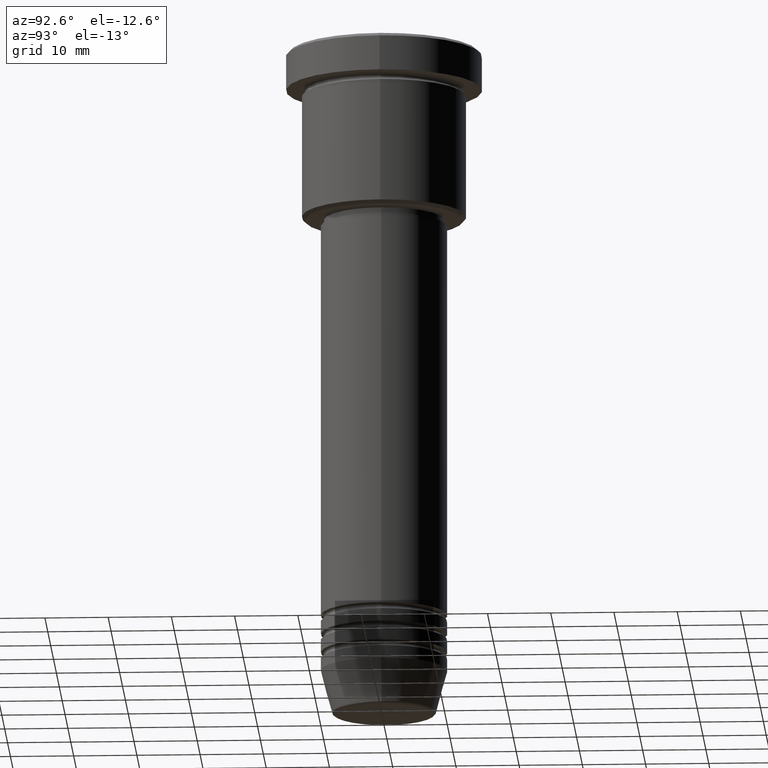
[diagram: clean part render]
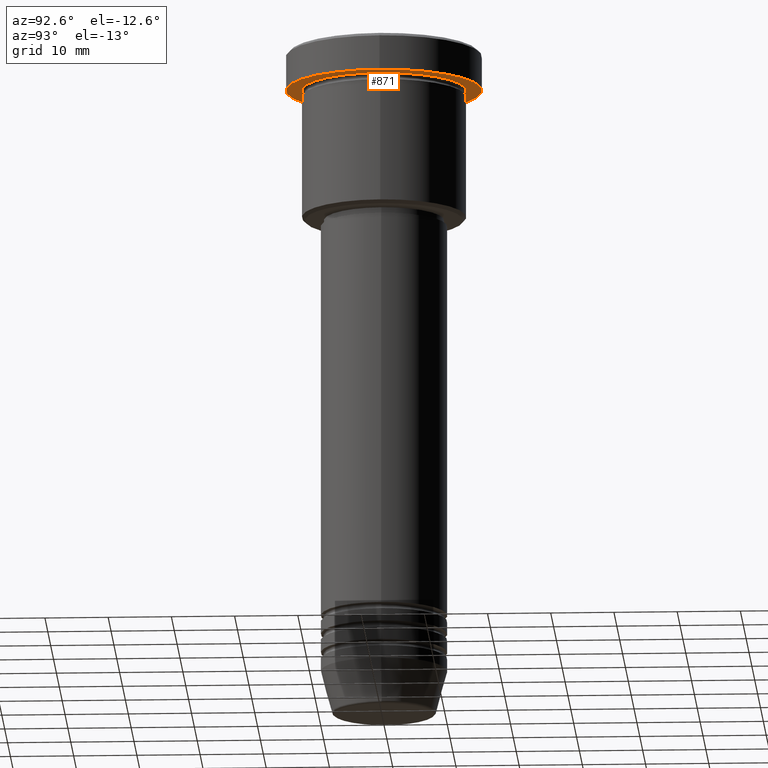
[diagram: same view with one face highlighted and labeled with its STEP entity id]
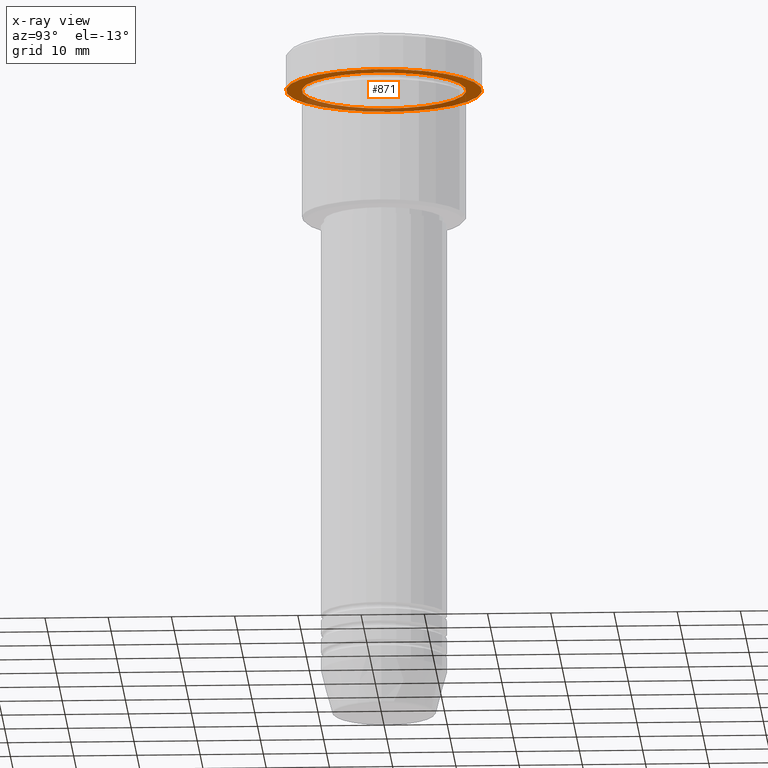
[diagram: x-ray of the same camera — body ghosted, the highlighted face saturated]
A machine part, auxiliary view. The second image highlights one B-rep face of the part: STEP entity #871.
The next image is the same camera in x-ray: the body ghosted, the highlighted face saturated — about 33% of this face is hidden behind the body in this view.
In plain terms, the highlighted planar face has unit normal (0, 0, -1).
Its self-contained STEP definition (entity closure, byte-faithful):
#25 = DIRECTION ( 'NONE',  ( 1.000000000000000000, 0.000000000000000000, 0.000000000000000000 ) ) ;
#26 = AXIS2_PLACEMENT_3D ( 'NONE', #847, #33, #493 ) ;
#33 = DIRECTION ( 'NONE',  ( -0.000000000000000000, -0.000000000000000000, 1.000000000000000000 ) ) ;
#126 = DIRECTION ( 'NONE',  ( -0.000000000000000000, -0.000000000000000000, 1.000000000000000000 ) ) ;
#182 = CIRCLE ( 'NONE', #879, 13.00000000000000000 ) ;
#226 = ORIENTED_EDGE ( 'NONE', *, *, #805, .F. ) ;
#246 = FACE_OUTER_BOUND ( 'NONE', #776, .T. ) ;
#323 = CARTESIAN_POINT ( 'NONE',  ( 13.00000000000000000, 1.592040838891559095E-15, -5.999999999999994671 ) ) ;
#331 = CARTESIAN_POINT ( 'NONE',  ( -15.50000000000000000, 1.898202538678397557E-15, -5.999999999999995559 ) ) ;
#340 = DIRECTION ( 'NONE',  ( -1.000000000000000000, 0.000000000000000000, 0.000000000000000000 ) ) ;
#362 = CIRCLE ( 'NONE', #678, 15.50000000000000000 ) ;
#377 = VERTEX_POINT ( 'NONE', #548 ) ;
#485 = CARTESIAN_POINT ( 'NONE',  ( -13.00000000000000000, 0.000000000000000000, -5.999999999999994671 ) ) ;
#493 = DIRECTION ( 'NONE',  ( 1.000000000000000000, 0.000000000000000000, 0.000000000000000000 ) ) ;
#497 = CARTESIAN_POINT ( 'NONE',  ( 0.000000000000000000, 15.50000000000000000, -5.999999999999995559 ) ) ;
#543 = DIRECTION ( 'NONE',  ( -0.000000000000000000, -0.000000000000000000, 1.000000000000000000 ) ) ;
#548 = CARTESIAN_POINT ( 'NONE',  ( 15.50000000000000000, 0.000000000000000000, -5.999999999999995559 ) ) ;
#611 = AXIS2_PLACEMENT_3D ( 'NONE', #497, #1034, #1136 ) ;
#675 = VERTEX_POINT ( 'NONE', #331 ) ;
#676 = DIRECTION ( 'NONE',  ( -1.000000000000000000, 0.000000000000000000, 0.000000000000000000 ) ) ;
#678 = AXIS2_PLACEMENT_3D ( 'NONE', #829, #543, #25 ) ;
#691 = VERTEX_POINT ( 'NONE', #485 ) ;
#701 = DIRECTION ( 'NONE',  ( -0.000000000000000000, -0.000000000000000000, 1.000000000000000000 ) ) ;
#704 = ORIENTED_EDGE ( 'NONE', *, *, #900, .T. ) ;
#709 = CIRCLE ( 'NONE', #26, 15.50000000000000000 ) ;
#727 = EDGE_LOOP ( 'NONE', ( #704, #872 ) ) ;
#774 = EDGE_CURVE ( 'NONE', #1107, #691, #893, .T. ) ;
#776 = EDGE_LOOP ( 'NONE', ( #941, #226 ) ) ;
#805 = EDGE_CURVE ( 'NONE', #675, #377, #362, .T. ) ;
#807 = AXIS2_PLACEMENT_3D ( 'NONE', #982, #701, #340 ) ;
#829 = CARTESIAN_POINT ( 'NONE',  ( 0.000000000000000000, 0.000000000000000000, -5.999999999999995559 ) ) ;
#847 = CARTESIAN_POINT ( 'NONE',  ( 0.000000000000000000, 0.000000000000000000, -5.999999999999995559 ) ) ;
#860 = CARTESIAN_POINT ( 'NONE',  ( 0.000000000000000000, 0.000000000000000000, -5.999999999999995559 ) ) ;
#871 = ADVANCED_FACE ( 'NONE', ( #943, #246 ), #1129, .T. ) ;
#872 = ORIENTED_EDGE ( 'NONE', *, *, #774, .T. ) ;
#879 = AXIS2_PLACEMENT_3D ( 'NONE', #860, #126, #676 ) ;
#893 = CIRCLE ( 'NONE', #807, 13.00000000000000000 ) ;
#900 = EDGE_CURVE ( 'NONE', #691, #1107, #182, .T. ) ;
#941 = ORIENTED_EDGE ( 'NONE', *, *, #1010, .F. ) ;
#943 = FACE_BOUND ( 'NONE', #727, .T. ) ;
#982 = CARTESIAN_POINT ( 'NONE',  ( 0.000000000000000000, 0.000000000000000000, -5.999999999999995559 ) ) ;
#1010 = EDGE_CURVE ( 'NONE', #377, #675, #709, .T. ) ;
#1034 = DIRECTION ( 'NONE',  ( 0.000000000000000000, 0.000000000000000000, -1.000000000000000000 ) ) ;
#1107 = VERTEX_POINT ( 'NONE', #323 ) ;
#1129 = PLANE ( 'NONE',  #611 ) ;
#1136 = DIRECTION ( 'NONE',  ( -1.000000000000000000, 0.000000000000000000, -0.000000000000000000 ) ) ;